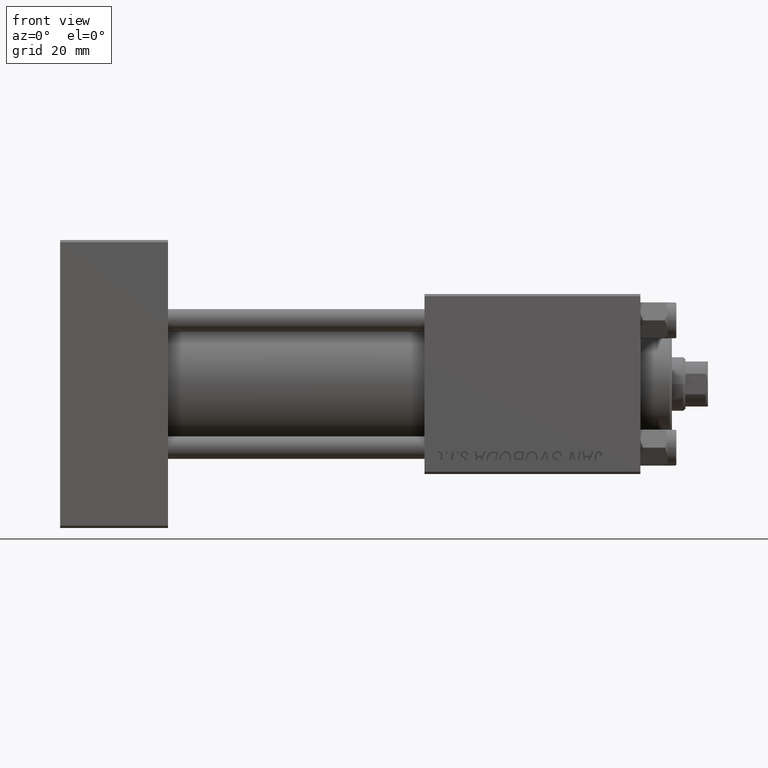
[diagram: clean part render]
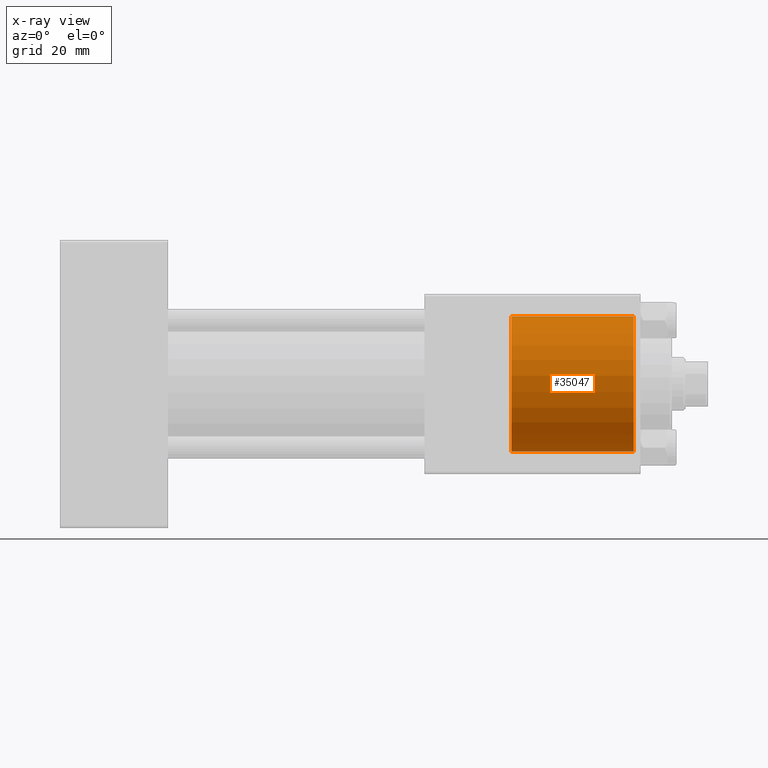
[diagram: x-ray — body ghosted, one internal face saturated and labeled with its STEP entity id]
A machine part, front view, then the same camera in x-ray: the body is ghosted and one INTERNAL B-rep face — a face not visible from any outside direction — is saturated and labeled: STEP entity #35047.
In plain terms, the highlighted cylindrical surface (partial cylindrical patch) has radius 15 mm, axis along (1, 0, 0).
Its self-contained STEP definition (entity closure, byte-faithful):
#658 = DIRECTION ( 'NONE',  ( 1.000000000000000000, 0.000000000000000000, 0.000000000000000000 ) ) ;
#1107 = EDGE_LOOP ( 'NONE', ( #8253, #34520, #44827, #44745 ) ) ;
#1619 = EDGE_CURVE ( 'NONE', #46925, #29644, #13126, .T. ) ;
#2008 = CARTESIAN_POINT ( 'NONE',  ( 100.2999999999999972, 1.836970198721029589E-15, 15.00000000000000000 ) ) ;
#2422 = VECTOR ( 'NONE', #20956, 1000.000000000000000 ) ;
#4067 = DIRECTION ( 'NONE',  ( 0.000000000000000000, 0.000000000000000000, -1.000000000000000000 ) ) ;
#4443 = DIRECTION ( 'NONE',  ( 0.000000000000000000, 0.000000000000000000, 1.000000000000000000 ) ) ;
#4770 = AXIS2_PLACEMENT_3D ( 'NONE', #27636, #15547, #24095 ) ;
#5233 = LINE ( 'NONE', #20629, #38486 ) ;
#5571 = LINE ( 'NONE', #48463, #2422 ) ;
#8253 = ORIENTED_EDGE ( 'NONE', *, *, #1619, .F. ) ;
#9200 = CARTESIAN_POINT ( 'NONE',  ( 127.4999999999999716, 1.836970198721029589E-15, 15.00000000000000000 ) ) ;
#13126 = CIRCLE ( 'NONE', #21194, 15.00000000000000000 ) ;
#15547 = DIRECTION ( 'NONE',  ( 1.000000000000000000, -0.000000000000000000, -0.000000000000000000 ) ) ;
#15664 = DIRECTION ( 'NONE',  ( 1.000000000000000000, 0.000000000000000000, 0.000000000000000000 ) ) ;
#16277 = FACE_OUTER_BOUND ( 'NONE', #1107, .T. ) ;
#16465 = EDGE_CURVE ( 'NONE', #29644, #35660, #5233, .T. ) ;
#18385 = AXIS2_PLACEMENT_3D ( 'NONE', #39014, #658, #4443 ) ;
#20629 = CARTESIAN_POINT ( 'NONE',  ( 100.2999999999999972, 0.000000000000000000, -15.00000000000000000 ) ) ;
#20956 = DIRECTION ( 'NONE',  ( 1.000000000000000000, -0.000000000000000000, -0.000000000000000000 ) ) ;
#21194 = AXIS2_PLACEMENT_3D ( 'NONE', #46953, #15664, #4067 ) ;
#24095 = DIRECTION ( 'NONE',  ( 0.000000000000000000, 0.000000000000000000, -1.000000000000000000 ) ) ;
#27636 = CARTESIAN_POINT ( 'NONE',  ( 100.2999999999999972, 0.000000000000000000, 0.000000000000000000 ) ) ;
#29644 = VERTEX_POINT ( 'NONE', #34402 ) ;
#31547 = EDGE_CURVE ( 'NONE', #35135, #35660, #36902, .T. ) ;
#34402 = CARTESIAN_POINT ( 'NONE',  ( 100.2999999999999972, 0.000000000000000000, -15.00000000000000000 ) ) ;
#34520 = ORIENTED_EDGE ( 'NONE', *, *, #37777, .T. ) ;
#35047 = ADVANCED_FACE ( 'NONE', ( #16277 ), #46831, .F. ) ;
#35135 = VERTEX_POINT ( 'NONE', #9200 ) ;
#35660 = VERTEX_POINT ( 'NONE', #43218 ) ;
#36033 = DIRECTION ( 'NONE',  ( 1.000000000000000000, -0.000000000000000000, -0.000000000000000000 ) ) ;
#36902 = CIRCLE ( 'NONE', #18385, 15.00000000000000000 ) ;
#37777 = EDGE_CURVE ( 'NONE', #46925, #35135, #5571, .T. ) ;
#38486 = VECTOR ( 'NONE', #36033, 1000.000000000000000 ) ;
#39014 = CARTESIAN_POINT ( 'NONE',  ( 127.4999999999999716, 0.000000000000000000, 0.000000000000000000 ) ) ;
#43218 = CARTESIAN_POINT ( 'NONE',  ( 127.4999999999999716, 0.000000000000000000, -15.00000000000000000 ) ) ;
#44745 = ORIENTED_EDGE ( 'NONE', *, *, #16465, .F. ) ;
#44827 = ORIENTED_EDGE ( 'NONE', *, *, #31547, .T. ) ;
#46831 = CYLINDRICAL_SURFACE ( 'NONE', #4770, 15.00000000000000000 ) ;
#46925 = VERTEX_POINT ( 'NONE', #2008 ) ;
#46953 = CARTESIAN_POINT ( 'NONE',  ( 100.2999999999999972, 0.000000000000000000, 0.000000000000000000 ) ) ;
#48463 = CARTESIAN_POINT ( 'NONE',  ( 100.2999999999999972, 1.836970198721029589E-15, 15.00000000000000000 ) ) ;